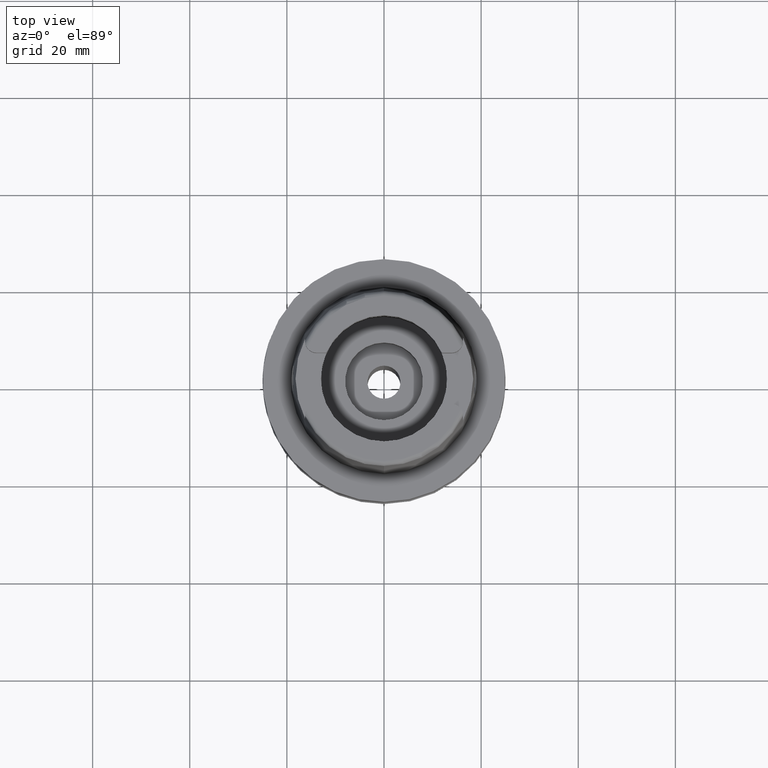
[diagram: clean part render]
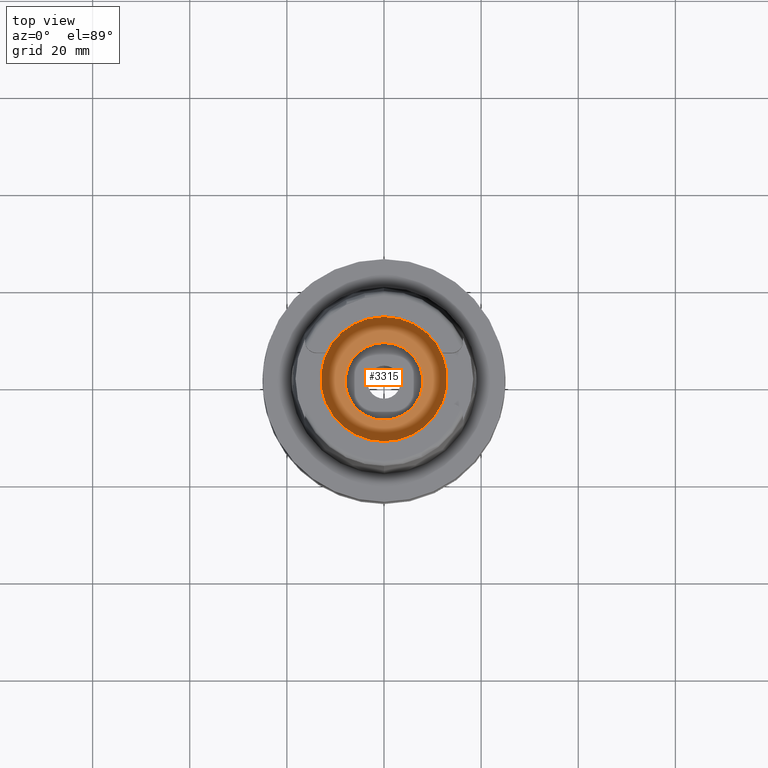
[diagram: same view with one face highlighted and labeled with its STEP entity id]
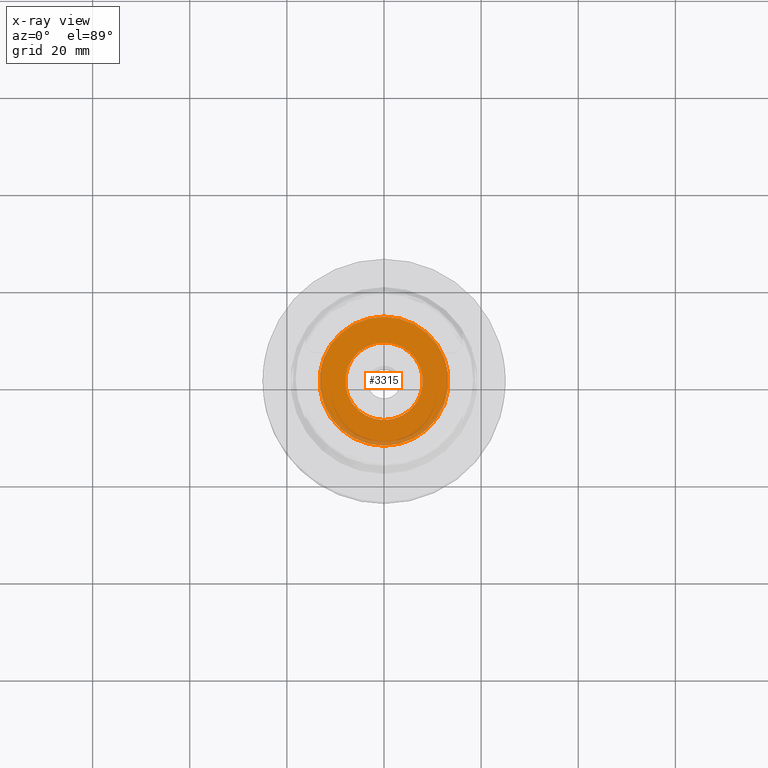
[diagram: x-ray of the same camera — body ghosted, the highlighted face saturated]
A machine part, top view. The second image highlights one B-rep face of the part: STEP entity #3315.
The next image is the same camera in x-ray: the body ghosted, the highlighted face saturated — about 9% of this face is hidden behind the body in this view.
In plain terms, the highlighted planar face has unit normal (0, 0, 1).
Its self-contained STEP definition (entity closure, byte-faithful):
#803=CARTESIAN_POINT('',(0.E0,0.E0,-9.95E0));
#804=DIRECTION('',(0.E0,0.E0,-1.E0));
#805=DIRECTION('',(0.E0,-1.E0,0.E0));
#806=AXIS2_PLACEMENT_3D('',#803,#804,#805);
#811=CARTESIAN_POINT('',(0.E0,0.E0,-9.95E0));
#812=DIRECTION('',(0.E0,0.E0,-1.E0));
#813=DIRECTION('',(0.E0,1.E0,0.E0));
#814=AXIS2_PLACEMENT_3D('',#811,#812,#813);
#819=CARTESIAN_POINT('',(0.E0,0.E0,-9.95E0));
#820=DIRECTION('',(0.E0,0.E0,1.E0));
#821=DIRECTION('',(0.E0,-1.E0,0.E0));
#822=AXIS2_PLACEMENT_3D('',#819,#820,#821);
#827=CARTESIAN_POINT('',(0.E0,0.E0,-9.95E0));
#828=DIRECTION('',(0.E0,0.E0,1.E0));
#829=DIRECTION('',(0.E0,1.E0,0.E0));
#830=AXIS2_PLACEMENT_3D('',#827,#828,#829);
#2529=CARTESIAN_POINT('',(0.E0,1.33E1,-9.95E0));
#2530=VERTEX_POINT('',#2529);
#2531=CARTESIAN_POINT('',(0.E0,-1.33E1,-9.95E0));
#2532=VERTEX_POINT('',#2531);
#2533=CARTESIAN_POINT('',(0.E0,-8.E0,-9.95E0));
#2534=CARTESIAN_POINT('',(0.E0,8.E0,-9.95E0));
#2535=VERTEX_POINT('',#2533);
#2536=VERTEX_POINT('',#2534);
#3300=CARTESIAN_POINT('',(0.E0,0.E0,-9.95E0));
#3301=DIRECTION('',(0.E0,0.E0,1.E0));
#3302=DIRECTION('',(0.E0,1.E0,0.E0));
#3303=AXIS2_PLACEMENT_3D('',#3300,#3301,#3302);
#3304=PLANE('',#3303);
#3305=ORIENTED_EDGE('',*,*,#3279,.T.);
#3306=ORIENTED_EDGE('',*,*,#3295,.T.);
#3307=EDGE_LOOP('',(#3305,#3306));
#3308=FACE_OUTER_BOUND('',#3307,.F.);
#3310=ORIENTED_EDGE('',*,*,#3309,.T.);
#3312=ORIENTED_EDGE('',*,*,#3311,.T.);
#3313=EDGE_LOOP('',(#3310,#3312));
#3314=FACE_BOUND('',#3313,.F.);
#807=CIRCLE('',#806,1.33E1);
#815=CIRCLE('',#814,1.33E1);
#823=CIRCLE('',#822,8.E0);
#831=CIRCLE('',#830,8.E0);
#3279=EDGE_CURVE('',#2532,#2530,#807,.T.);
#3295=EDGE_CURVE('',#2530,#2532,#815,.T.);
#3309=EDGE_CURVE('',#2535,#2536,#823,.T.);
#3311=EDGE_CURVE('',#2536,#2535,#831,.T.);
#3315=ADVANCED_FACE('',(#3308,#3314),#3304,.T.);